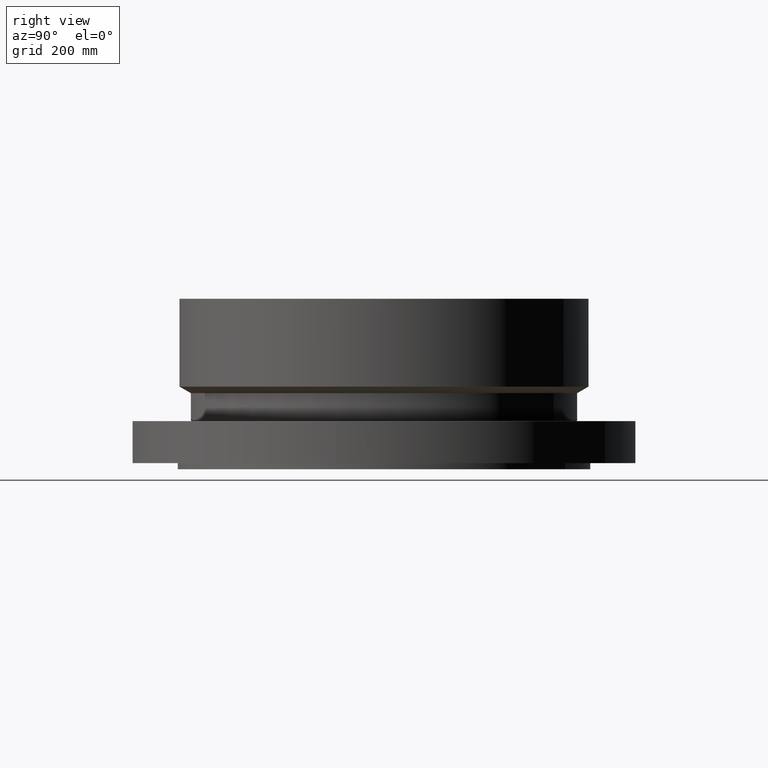
[diagram: clean part render]
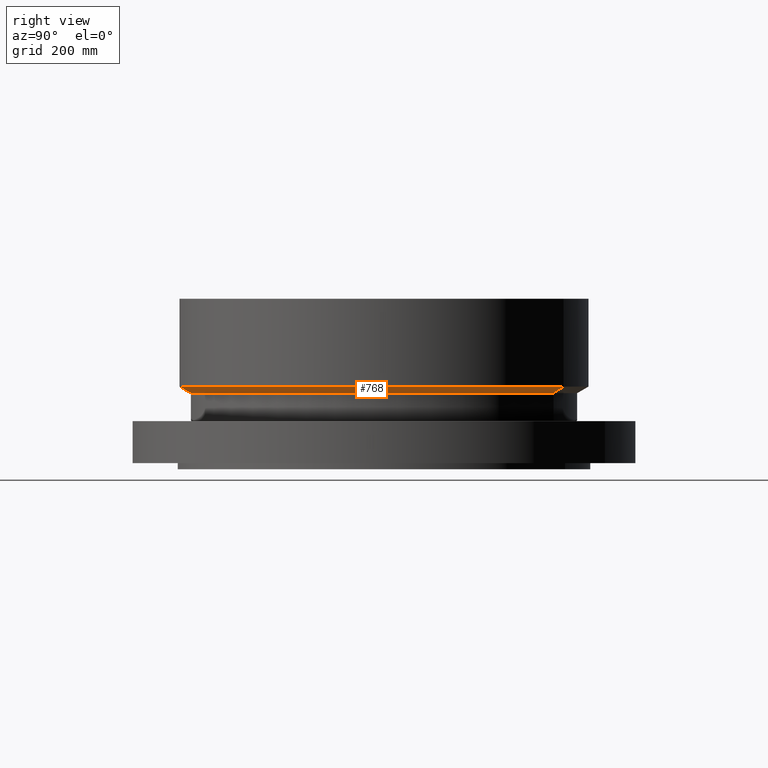
[diagram: same view with one face highlighted and labeled with its STEP entity id]
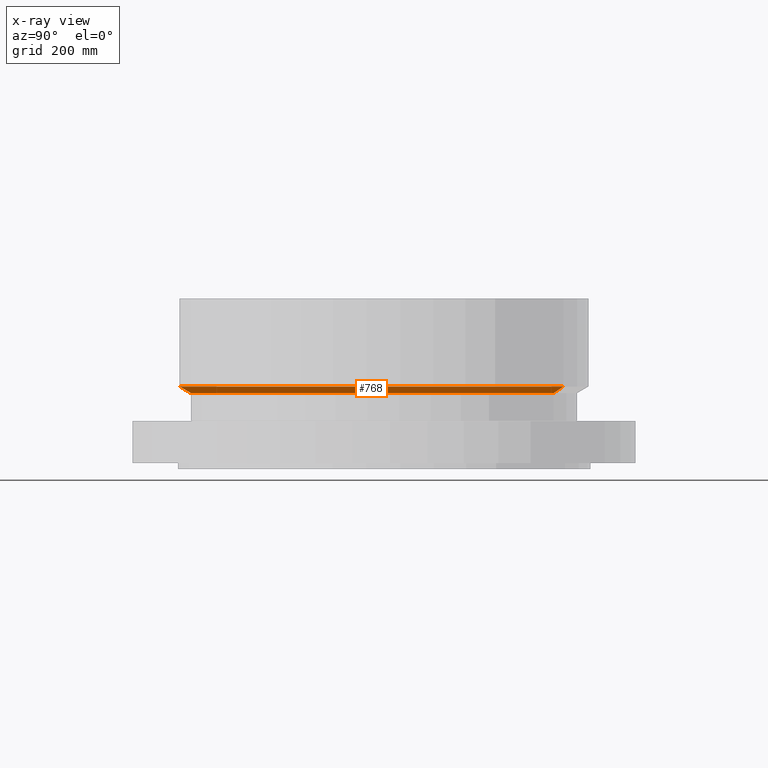
[diagram: x-ray of the same camera — body ghosted, the highlighted face saturated]
A machine part, right view. The second image highlights one B-rep face of the part: STEP entity #768.
The next image is the same camera in x-ray: the body ghosted, the highlighted face saturated — about 0% of this face is hidden behind the body in this view.
In plain terms, the highlighted conical surface has half-angle 60 deg.
Its self-contained STEP definition (entity closure, byte-faithful):
#709=AXIS2_PLACEMENT_3D('Circle Axis2P3D',#707,#708,$) ;
#741=AXIS2_PLACEMENT_3D('Cone Axis2P3D',#738,#739,#740) ;
#752=AXIS2_PLACEMENT_3D('Circle Axis2P3D',#750,#751,$) ;
#704=CARTESIAN_POINT('Vertex',(6.62086668815,12.1194151798,5.00000000002)) ;
#707=CARTESIAN_POINT('Axis2P3D Location',(0.,0.,5.00000000002)) ;
#711=CARTESIAN_POINT('Vertex',(-6.62086668815,-12.1194151798,5.00000000002)) ;
#738=CARTESIAN_POINT('Axis2P3D Location',(0.,0.,5.00000000002)) ;
#743=CARTESIAN_POINT('Line Origine',(6.81623259513,12.4770300737,5.23527023472)) ;
#747=CARTESIAN_POINT('Vertex',(7.01159850211,12.8346449677,5.47054046941)) ;
#750=CARTESIAN_POINT('Axis2P3D Location',(0.,0.,5.47054046941)) ;
#754=CARTESIAN_POINT('Vertex',(-7.01159850211,-12.8346449677,5.47054046941)) ;
#757=CARTESIAN_POINT('Line Origine',(-6.81623259513,-12.4770300737,5.23527023472)) ;
#708=DIRECTION('Axis2P3D Direction',(0.,0.,-0.0393700787402)) ;
#739=DIRECTION('Axis2P3D Direction',(-0.,-0.,0.0393700787402)) ;
#740=DIRECTION('Axis2P3D XDirection',(0.0188750212049,0.0345504945626,0.)) ;
#744=DIRECTION('Vector Direction',(0.0163462478604,0.0299216060045,0.0196850393701)) ;
#751=DIRECTION('Axis2P3D Direction',(-0.,0.,0.0393700787402)) ;
#758=DIRECTION('Vector Direction',(-0.0163462478604,-0.0299216060045,0.0196850393701)) ;
#745=VECTOR('Line Direction',#744,0.0393700787402) ;
#759=VECTOR('Line Direction',#758,0.0393700787402) ;
#763=ORIENTED_EDGE('',*,*,#713,.F.) ;
#764=ORIENTED_EDGE('',*,*,#749,.T.) ;
#765=ORIENTED_EDGE('',*,*,#756,.T.) ;
#766=ORIENTED_EDGE('',*,*,#761,.F.) ;
#768=ADVANCED_FACE('PartBody',(#767),#742,.T.) ;
#710=CIRCLE('generated circle',#709,13.8100000001) ;
#753=CIRCLE('generated circle',#752,14.6250000001) ;
#742=CONICAL_SURFACE('Cone',#741,13.8100000001,1.0471975512) ;
#713=EDGE_CURVE('',#705,#712,#710,.T.) ;
#749=EDGE_CURVE('',#705,#748,#746,.T.) ;
#756=EDGE_CURVE('',#748,#755,#753,.F.) ;
#761=EDGE_CURVE('',#712,#755,#760,.T.) ;
#762=EDGE_LOOP('',(#763,#764,#765,#766)) ;
#767=FACE_OUTER_BOUND('',#762,.T.) ;
#746=LINE('Line',#743,#745) ;
#760=LINE('Line',#757,#759) ;
#705=VERTEX_POINT('',#704) ;
#712=VERTEX_POINT('',#711) ;
#748=VERTEX_POINT('',#747) ;
#755=VERTEX_POINT('',#754) ;